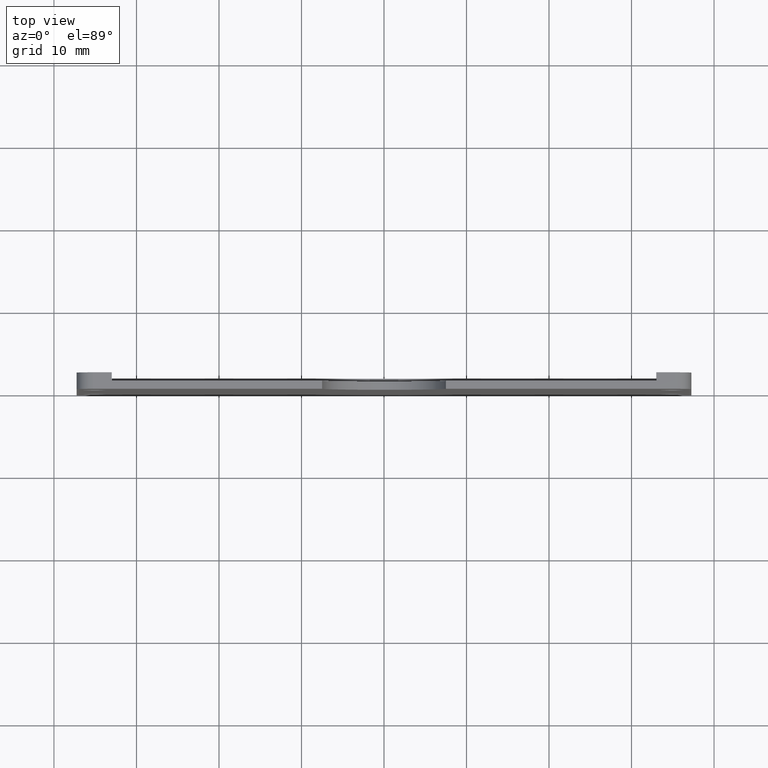
[diagram: clean part render]
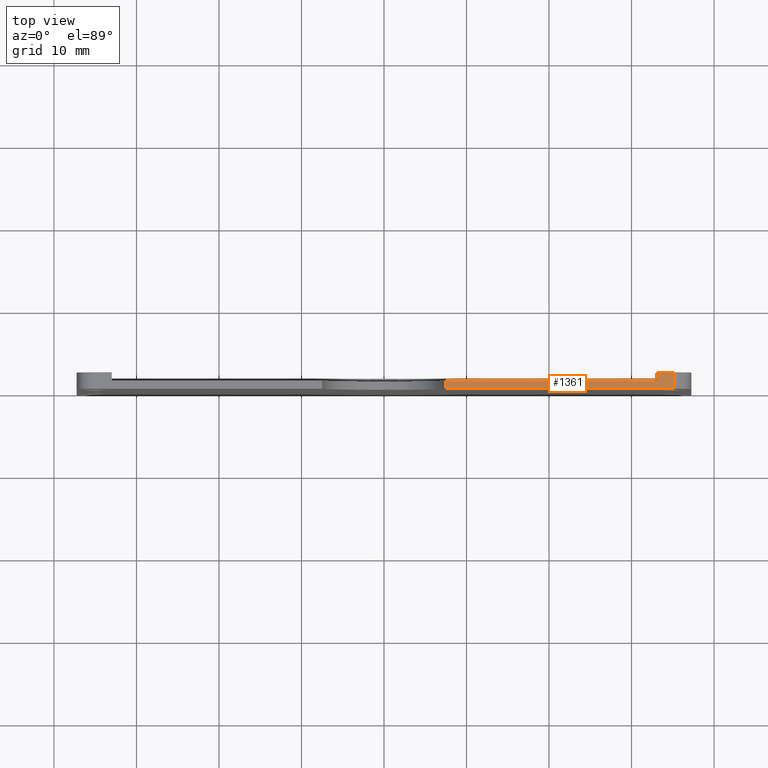
[diagram: same view with one face highlighted and labeled with its STEP entity id]
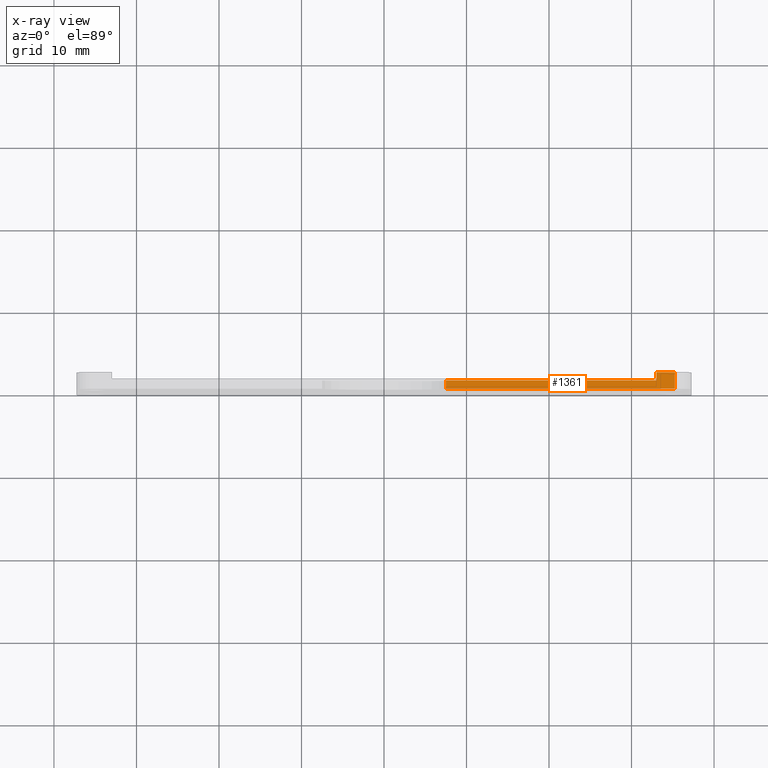
[diagram: x-ray of the same camera — body ghosted, the highlighted face saturated]
A machine part, top view. The second image highlights one B-rep face of the part: STEP entity #1361.
The next image is the same camera in x-ray: the body ghosted, the highlighted face saturated — about 0% of this face is hidden behind the body in this view.
In plain terms, the highlighted face is a freeform B-spline surface patch.
Its self-contained STEP definition (entity closure, byte-faithful):
#809=CARTESIAN_POINT('',(7.499999857678900,1.0,47.999999869832202));
#810=VERTEX_POINT('',#809);
#826=CARTESIAN_POINT('',(33.0,1.0,48.0));
#827=VERTEX_POINT('',#826);
#828=CARTESIAN_POINT('',(7.499999857678900,1.0,47.999999869832202));
#829=CARTESIAN_POINT('',(33.0,1.0,48.0));
#830=QUASI_UNIFORM_CURVE('',1,(#828,#829),.UNSPECIFIED.,.F.,.U.);
#831=EDGE_CURVE('',#810,#827,#830,.T.);
#881=CARTESIAN_POINT('',(33.0,2.0,48.0));
#882=VERTEX_POINT('',#881);
#890=CARTESIAN_POINT('',(33.0,1.0,48.0));
#891=CARTESIAN_POINT('',(33.0,2.0,48.0));
#892=QUASI_UNIFORM_CURVE('',1,(#890,#891),.UNSPECIFIED.,.F.,.U.);
#893=EDGE_CURVE('',#827,#882,#892,.T.);
#1000=CARTESIAN_POINT('',(35.250000000000000,0.0,48.0));
#1001=VERTEX_POINT('',#1000);
#1015=CARTESIAN_POINT('',(7.499999857678900,0.0,47.999999869832202));
#1016=VERTEX_POINT('',#1015);
#1017=CARTESIAN_POINT('',(7.499999857678900,0.0,47.999999869832202));
#1018=CARTESIAN_POINT('',(35.250000000000000,0.0,48.0));
#1019=QUASI_UNIFORM_CURVE('',1,(#1017,#1018),.UNSPECIFIED.,.F.,.U.);
#1020=EDGE_CURVE('',#1016,#1001,#1019,.T.);
#1079=CARTESIAN_POINT('',(35.250000000000000,2.0,48.0));
#1080=VERTEX_POINT('',#1079);
#1081=CARTESIAN_POINT('',(33.0,2.0,48.0));
#1082=CARTESIAN_POINT('',(35.250000000000000,2.0,48.0));
#1083=QUASI_UNIFORM_CURVE('',1,(#1081,#1082),.UNSPECIFIED.,.F.,.U.);
#1084=EDGE_CURVE('',#882,#1080,#1083,.T.);
#1336=CARTESIAN_POINT('',(35.250000000000000,2.0,48.0));
#1337=CARTESIAN_POINT('',(35.250000000000000,0.0,48.0));
#1338=QUASI_UNIFORM_CURVE('',1,(#1336,#1337),.UNSPECIFIED.,.F.,.U.);
#1339=EDGE_CURVE('',#1080,#1001,#1338,.T.);
#1344=CARTESIAN_POINT('',(36.636112453324053,-0.099899996123612,48.0));
#1345=CARTESIAN_POINT('',(6.113886660041839,-0.099899996123612,48.0));
#1346=CARTESIAN_POINT('',(36.636112453324053,2.099900049767792,48.0));
#1347=CARTESIAN_POINT('',(6.113886660041839,2.099900049767792,48.0));
#1348=B_SPLINE_SURFACE_WITH_KNOTS('',1,1,((#1344,#1346),(#1345,#1347)),.UNSPECIFIED.,.F.,.F.,.U.,(2,2),(2,2),(0.0,30.522225793282210),(0.0,2.199800045891404),.UNSPECIFIED.);
#1349=ORIENTED_EDGE('',*,*,#1084,.F.);
#1350=ORIENTED_EDGE('',*,*,#893,.F.);
#1351=ORIENTED_EDGE('',*,*,#831,.F.);
#1352=CARTESIAN_POINT('',(7.499999857678900,1.0,47.999999869832202));
#1353=CARTESIAN_POINT('',(7.499999857678900,0.0,47.999999869832202));
#1354=QUASI_UNIFORM_CURVE('',1,(#1352,#1353),.UNSPECIFIED.,.F.,.U.);
#1355=EDGE_CURVE('',#810,#1016,#1354,.T.);
#1356=ORIENTED_EDGE('',*,*,#1355,.T.);
#1357=ORIENTED_EDGE('',*,*,#1020,.T.);
#1358=ORIENTED_EDGE('',*,*,#1339,.F.);
#1359=EDGE_LOOP('',(#1349,#1350,#1351,#1356,#1357,#1358));
#1360=FACE_OUTER_BOUND('',#1359,.T.);
#1361=ADVANCED_FACE('',(#1360),#1348,.F.);